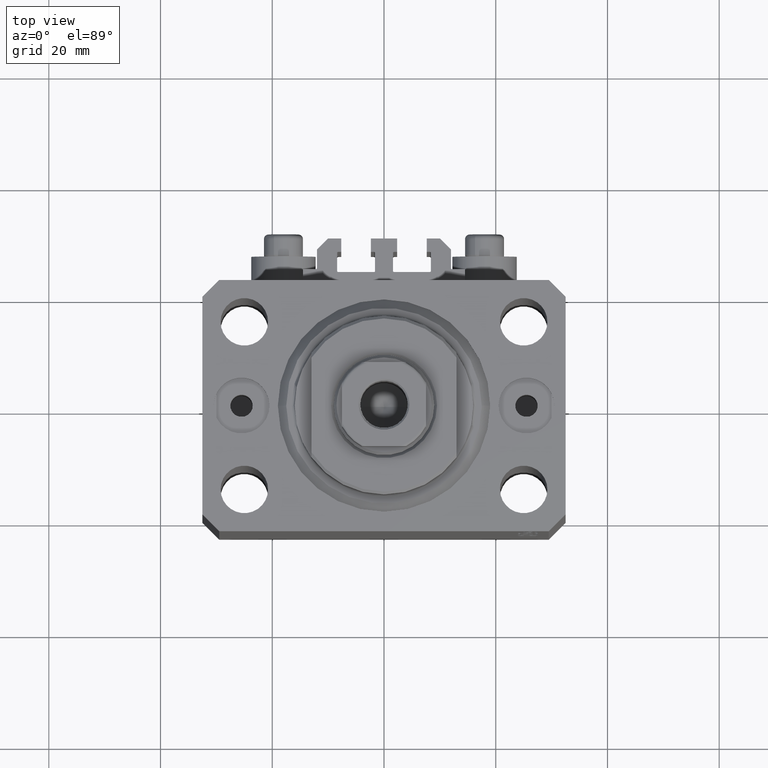
[diagram: clean part render]
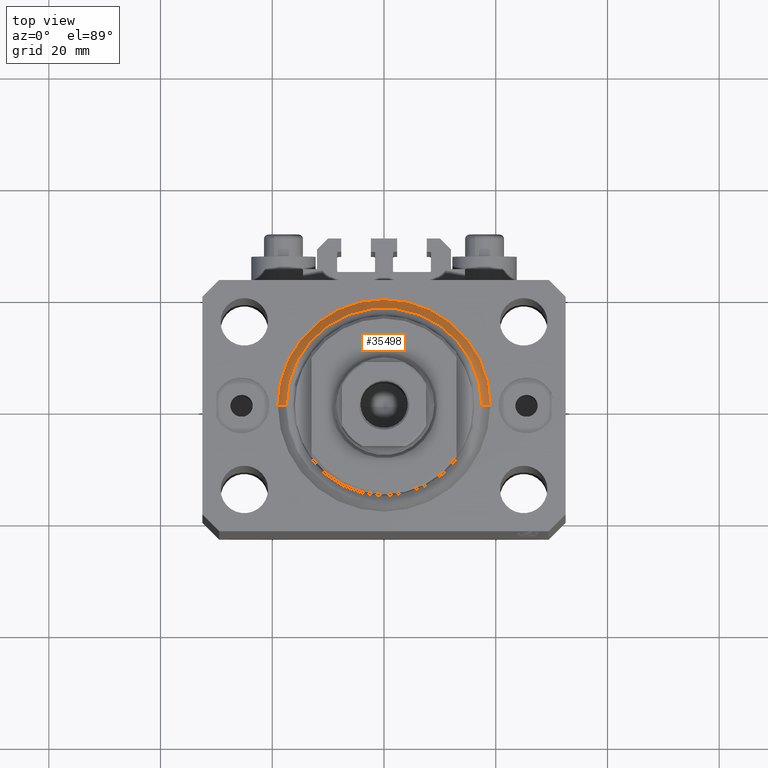
[diagram: same view with one face highlighted and labeled with its STEP entity id]
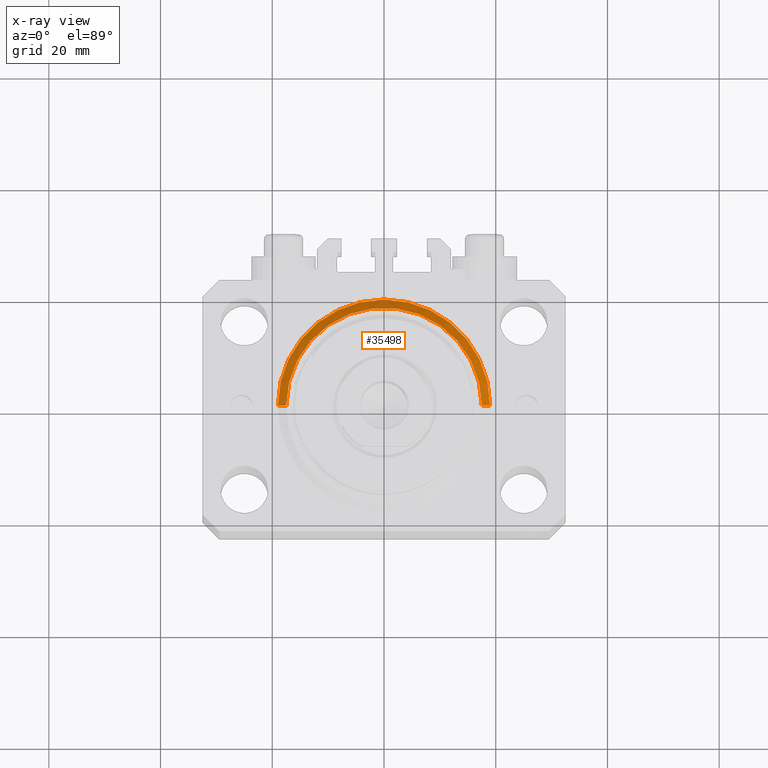
[diagram: x-ray of the same camera — body ghosted, the highlighted face saturated]
A machine part, top view. The second image highlights one B-rep face of the part: STEP entity #35498.
The next image is the same camera in x-ray: the body ghosted, the highlighted face saturated — about 0% of this face is hidden behind the body in this view.
In plain terms, the highlighted conical surface has half-angle 45 deg.
Its self-contained STEP definition (entity closure, byte-faithful):
#840 = DIRECTION ( 'NONE',  ( 1.000000000000000000, 0.000000000000000000, 0.000000000000000000 ) ) ;
#1351 = CIRCLE ( 'NONE', #5924, 19.00000000000000000 ) ;
#2822 = AXIS2_PLACEMENT_3D ( 'NONE', #18965, #7523, #840 ) ;
#2948 = DIRECTION ( 'NONE',  ( 0.7071067811865483499, 0.000000000000000000, 0.7071067811865467956 ) ) ;
#3063 = CARTESIAN_POINT ( 'NONE',  ( -17.49999999999999289, 2.234980408443919215E-15, 0.000000000000000000 ) ) ;
#3971 = CARTESIAN_POINT ( 'NONE',  ( -19.00000000000000000, 2.326828918379970970E-15, 1.500000000000004885 ) ) ;
#4486 = AXIS2_PLACEMENT_3D ( 'NONE', #16954, #46294, #35801 ) ;
#5695 = VERTEX_POINT ( 'NONE', #3063 ) ;
#5924 = AXIS2_PLACEMENT_3D ( 'NONE', #19419, #33051, #33984 ) ;
#7523 = DIRECTION ( 'NONE',  ( -0.000000000000000000, -0.000000000000000000, 1.000000000000000000 ) ) ;
#10607 = CARTESIAN_POINT ( 'NONE',  ( 17.49999999999999289, 0.000000000000000000, 0.000000000000000000 ) ) ;
#13096 = EDGE_CURVE ( 'NONE', #5695, #14699, #36667, .T. ) ;
#14454 = VECTOR ( 'NONE', #22095, 1000.000000000000000 ) ;
#14620 = CARTESIAN_POINT ( 'NONE',  ( 19.00000000000000000, 2.326828918379970970E-15, 1.500000000000004885 ) ) ;
#14699 = VERTEX_POINT ( 'NONE', #27413 ) ;
#15012 = CONICAL_SURFACE ( 'NONE', #2822, 19.00000000000000000, 0.7853981633974492782 ) ;
#16954 = CARTESIAN_POINT ( 'NONE',  ( 0.000000000000000000, 0.000000000000000000, 0.000000000000000000 ) ) ;
#17733 = LINE ( 'NONE', #39703, #40232 ) ;
#18965 = CARTESIAN_POINT ( 'NONE',  ( 0.000000000000000000, 0.000000000000000000, 1.500000000000004885 ) ) ;
#19419 = CARTESIAN_POINT ( 'NONE',  ( 0.000000000000000000, 0.000000000000000000, 1.500000000000004885 ) ) ;
#22095 = DIRECTION ( 'NONE',  ( -0.7071067811865483499, 8.659560562354943952E-17, 0.7071067811865467956 ) ) ;
#22412 = EDGE_CURVE ( 'NONE', #5695, #42962, #43343, .T. ) ;
#22545 = FACE_OUTER_BOUND ( 'NONE', #25440, .T. ) ;
#22583 = ORIENTED_EDGE ( 'NONE', *, *, #22412, .F. ) ;
#22801 = ORIENTED_EDGE ( 'NONE', *, *, #39716, .F. ) ;
#25440 = EDGE_LOOP ( 'NONE', ( #22583, #30914, #22801, #46448 ) ) ;
#27413 = CARTESIAN_POINT ( 'NONE',  ( -19.00000000000000000, 0.000000000000000000, 1.500000000000004885 ) ) ;
#30914 = ORIENTED_EDGE ( 'NONE', *, *, #13096, .T. ) ;
#33051 = DIRECTION ( 'NONE',  ( -0.000000000000000000, -0.000000000000000000, 1.000000000000000000 ) ) ;
#33984 = DIRECTION ( 'NONE',  ( 1.000000000000000000, 0.000000000000000000, 0.000000000000000000 ) ) ;
#35498 = ADVANCED_FACE ( 'NONE', ( #22545 ), #15012, .T. ) ;
#35801 = DIRECTION ( 'NONE',  ( 1.000000000000000000, 0.000000000000000000, 0.000000000000000000 ) ) ;
#35849 = VERTEX_POINT ( 'NONE', #14620 ) ;
#36667 = LINE ( 'NONE', #3971, #14454 ) ;
#39703 = CARTESIAN_POINT ( 'NONE',  ( 19.00000000000000000, 0.000000000000000000, 1.500000000000004885 ) ) ;
#39716 = EDGE_CURVE ( 'NONE', #35849, #14699, #1351, .T. ) ;
#40232 = VECTOR ( 'NONE', #2948, 1000.000000000000000 ) ;
#40852 = EDGE_CURVE ( 'NONE', #42962, #35849, #17733, .T. ) ;
#42962 = VERTEX_POINT ( 'NONE', #10607 ) ;
#43343 = CIRCLE ( 'NONE', #4486, 17.49999999999999289 ) ;
#46294 = DIRECTION ( 'NONE',  ( -0.000000000000000000, -0.000000000000000000, -1.000000000000000000 ) ) ;
#46448 = ORIENTED_EDGE ( 'NONE', *, *, #40852, .F. ) ;